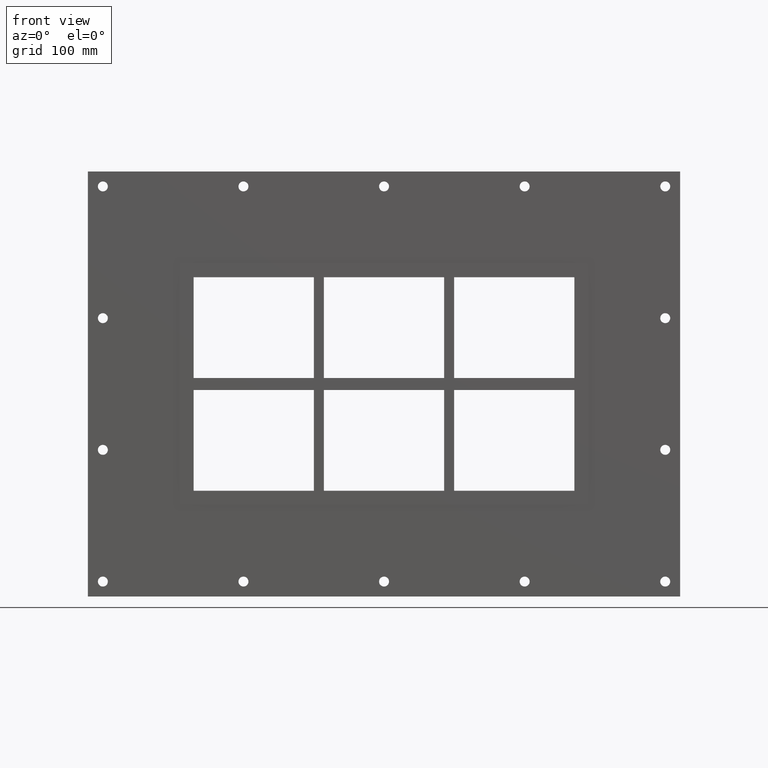
[diagram: clean part render]
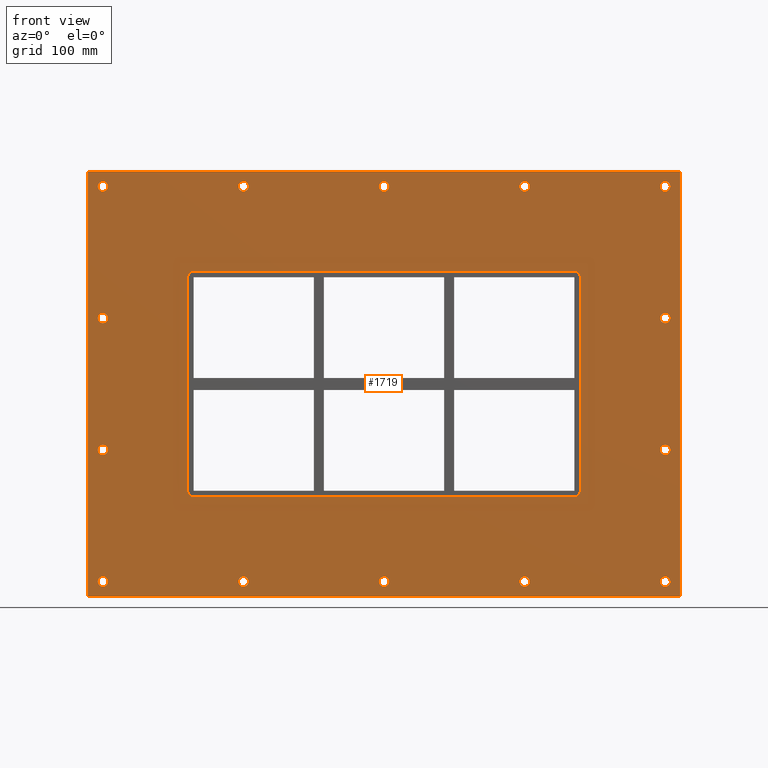
[diagram: same view with one face highlighted and labeled with its STEP entity id]
A machine part, front view. The second image highlights one B-rep face of the part: STEP entity #1719.
In plain terms, the highlighted planar face has unit normal (0, 1, 0).
Its self-contained STEP definition (entity closure, byte-faithful):
#84=CARTESIAN_POINT('',(-276.75000000000017,0.0,-197.99999999999997));
#85=VERTEX_POINT('',#84);
#86=CARTESIAN_POINT('',(-281.75000000000017,0.0,-197.99999999999997));
#87=DIRECTION('',(0.0,1.0,0.0));
#88=DIRECTION('',(1.0,0.0,0.0));
#89=AXIS2_PLACEMENT_3D('',#86,#87,#88);
#90=CIRCLE('',#89,5.0);
#91=EDGE_CURVE('',#85,#85,#90,.T.);
#112=CARTESIAN_POINT('',(286.84999999999991,0.0,-66.000000000000014));
#113=VERTEX_POINT('',#112);
#114=CARTESIAN_POINT('',(281.84999999999991,0.0,-66.000000000000014));
#115=DIRECTION('',(0.0,1.0,0.0));
#116=DIRECTION('',(1.0,0.0,0.0));
#117=AXIS2_PLACEMENT_3D('',#114,#115,#116);
#118=CIRCLE('',#117,5.0);
#119=EDGE_CURVE('',#113,#113,#118,.T.);
#140=CARTESIAN_POINT('',(-276.75000000000017,0.0,-66.000000000000014));
#141=VERTEX_POINT('',#140);
#142=CARTESIAN_POINT('',(-281.75000000000017,0.0,-66.000000000000014));
#143=DIRECTION('',(0.0,1.0,0.0));
#144=DIRECTION('',(1.0,0.0,0.0));
#145=AXIS2_PLACEMENT_3D('',#142,#143,#144);
#146=CIRCLE('',#145,5.0);
#147=EDGE_CURVE('',#141,#141,#146,.T.);
#168=CARTESIAN_POINT('',(286.84999999999991,0.0,66.0));
#169=VERTEX_POINT('',#168);
#170=CARTESIAN_POINT('',(281.84999999999991,0.0,66.0));
#171=DIRECTION('',(0.0,1.0,0.0));
#172=DIRECTION('',(1.0,0.0,0.0));
#173=AXIS2_PLACEMENT_3D('',#170,#171,#172);
#174=CIRCLE('',#173,5.0);
#175=EDGE_CURVE('',#169,#169,#174,.T.);
#196=CARTESIAN_POINT('',(-276.75000000000017,0.0,66.0));
#197=VERTEX_POINT('',#196);
#198=CARTESIAN_POINT('',(-281.75000000000017,0.0,66.0));
#199=DIRECTION('',(0.0,1.0,0.0));
#200=DIRECTION('',(1.0,0.0,0.0));
#201=AXIS2_PLACEMENT_3D('',#198,#199,#200);
#202=CIRCLE('',#201,5.0);
#203=EDGE_CURVE('',#197,#197,#202,.T.);
#224=CARTESIAN_POINT('',(-135.85000000000011,0.0,198.0));
#225=VERTEX_POINT('',#224);
#226=CARTESIAN_POINT('',(-140.85000000000011,0.0,198.0));
#227=DIRECTION('',(0.0,1.0,0.0));
#228=DIRECTION('',(1.0,0.0,0.0));
#229=AXIS2_PLACEMENT_3D('',#226,#227,#228);
#230=CIRCLE('',#229,5.0);
#231=EDGE_CURVE('',#225,#225,#230,.T.);
#252=CARTESIAN_POINT('',(-135.85000000000011,0.0,-198.0));
#253=VERTEX_POINT('',#252);
#254=CARTESIAN_POINT('',(-140.85000000000011,0.0,-198.0));
#255=DIRECTION('',(0.0,1.0,0.0));
#256=DIRECTION('',(1.0,0.0,0.0));
#257=AXIS2_PLACEMENT_3D('',#254,#255,#256);
#258=CIRCLE('',#257,5.0);
#259=EDGE_CURVE('',#253,#253,#258,.T.);
#280=CARTESIAN_POINT('',(5.049999999999884,0.0,198.0));
#281=VERTEX_POINT('',#280);
#282=CARTESIAN_POINT('',(0.049999999999883,0.0,198.0));
#283=DIRECTION('',(0.0,1.0,0.0));
#284=DIRECTION('',(1.0,0.0,0.0));
#285=AXIS2_PLACEMENT_3D('',#282,#283,#284);
#286=CIRCLE('',#285,5.0);
#287=EDGE_CURVE('',#281,#281,#286,.T.);
#308=CARTESIAN_POINT('',(5.049999999999884,0.0,-198.0));
#309=VERTEX_POINT('',#308);
#310=CARTESIAN_POINT('',(0.049999999999883,0.0,-198.0));
#311=DIRECTION('',(0.0,1.0,0.0));
#312=DIRECTION('',(1.0,0.0,0.0));
#313=AXIS2_PLACEMENT_3D('',#310,#311,#312);
#314=CIRCLE('',#313,5.0);
#315=EDGE_CURVE('',#309,#309,#314,.T.);
#336=CARTESIAN_POINT('',(145.9499999999999,0.0,198.0));
#337=VERTEX_POINT('',#336);
#338=CARTESIAN_POINT('',(140.9499999999999,0.0,198.0));
#339=DIRECTION('',(0.0,1.0,0.0));
#340=DIRECTION('',(1.0,0.0,0.0));
#341=AXIS2_PLACEMENT_3D('',#338,#339,#340);
#342=CIRCLE('',#341,5.0);
#343=EDGE_CURVE('',#337,#337,#342,.T.);
#364=CARTESIAN_POINT('',(145.9499999999999,0.0,-198.0));
#365=VERTEX_POINT('',#364);
#366=CARTESIAN_POINT('',(140.9499999999999,0.0,-198.0));
#367=DIRECTION('',(0.0,1.0,0.0));
#368=DIRECTION('',(1.0,0.0,0.0));
#369=AXIS2_PLACEMENT_3D('',#366,#367,#368);
#370=CIRCLE('',#369,5.0);
#371=EDGE_CURVE('',#365,#365,#370,.T.);
#392=CARTESIAN_POINT('',(286.84999999999991,0.0,-198.0));
#393=VERTEX_POINT('',#392);
#394=CARTESIAN_POINT('',(281.84999999999991,0.0,-198.0));
#395=DIRECTION('',(0.0,1.0,0.0));
#396=DIRECTION('',(1.0,0.0,0.0));
#397=AXIS2_PLACEMENT_3D('',#394,#395,#396);
#398=CIRCLE('',#397,5.0);
#399=EDGE_CURVE('',#393,#393,#398,.T.);
#420=CARTESIAN_POINT('',(-276.75000000000017,0.0,198.0));
#421=VERTEX_POINT('',#420);
#422=CARTESIAN_POINT('',(-281.75000000000017,0.0,198.0));
#423=DIRECTION('',(0.0,1.0,0.0));
#424=DIRECTION('',(1.0,0.0,0.0));
#425=AXIS2_PLACEMENT_3D('',#422,#423,#424);
#426=CIRCLE('',#425,5.0);
#427=EDGE_CURVE('',#421,#421,#426,.T.);
#448=CARTESIAN_POINT('',(286.84999999999991,0.0,198.0));
#449=VERTEX_POINT('',#448);
#450=CARTESIAN_POINT('',(281.84999999999991,0.0,198.0));
#451=DIRECTION('',(0.0,1.0,0.0));
#452=DIRECTION('',(1.0,0.0,0.0));
#453=AXIS2_PLACEMENT_3D('',#450,#451,#452);
#454=CIRCLE('',#453,5.0);
#455=EDGE_CURVE('',#449,#449,#454,.T.);
#1568=CARTESIAN_POINT('',(0.0,0.0,-2.414939E-014));
#1569=DIRECTION('',(0.0,1.0,0.0));
#1570=DIRECTION('',(0.0,0.0,1.0));
#1571=AXIS2_PLACEMENT_3D('',#1568,#1569,#1570);
#1572=PLANE('',#1571);
#1573=CARTESIAN_POINT('',(-296.75000000000006,0.0,212.99999999999997));
#1574=VERTEX_POINT('',#1573);
#1575=CARTESIAN_POINT('',(296.75000000000006,0.0,212.99999999999997));
#1576=VERTEX_POINT('',#1575);
#1577=CARTESIAN_POINT('',(-296.75000000000006,0.0,212.99999999999997));
#1578=DIRECTION('',(1.0,0.0,0.0));
#1579=VECTOR('',#1578,593.50000000000011);
#1580=LINE('',#1577,#1579);
#1581=EDGE_CURVE('',#1574,#1576,#1580,.T.);
#1582=ORIENTED_EDGE('',*,*,#1581,.F.);
#1583=CARTESIAN_POINT('',(-296.75000000000006,0.0,-213.0));
#1584=VERTEX_POINT('',#1583);
#1585=CARTESIAN_POINT('',(-296.75000000000006,0.0,-213.0));
#1586=DIRECTION('',(0.0,0.0,1.0));
#1587=VECTOR('',#1586,425.99999999999994);
#1588=LINE('',#1585,#1587);
#1589=EDGE_CURVE('',#1584,#1574,#1588,.T.);
#1590=ORIENTED_EDGE('',*,*,#1589,.F.);
#1591=CARTESIAN_POINT('',(296.75000000000006,0.0,-213.0));
#1592=VERTEX_POINT('',#1591);
#1593=CARTESIAN_POINT('',(296.75000000000006,0.0,-213.0));
#1594=DIRECTION('',(-1.0,0.0,0.0));
#1595=VECTOR('',#1594,593.50000000000011);
#1596=LINE('',#1593,#1595);
#1597=EDGE_CURVE('',#1592,#1584,#1596,.T.);
#1598=ORIENTED_EDGE('',*,*,#1597,.F.);
#1599=CARTESIAN_POINT('',(296.75000000000006,0.0,212.99999999999997));
#1600=DIRECTION('',(0.0,0.0,-1.0));
#1601=VECTOR('',#1600,425.99999999999994);
#1602=LINE('',#1599,#1601);
#1603=EDGE_CURVE('',#1576,#1592,#1602,.T.);
#1604=ORIENTED_EDGE('',*,*,#1603,.F.);
#1605=EDGE_LOOP('',(#1582,#1590,#1598,#1604));
#1606=FACE_OUTER_BOUND('',#1605,.T.);
#1607=ORIENTED_EDGE('',*,*,#91,.T.);
#1608=EDGE_LOOP('',(#1607));
#1609=FACE_BOUND('',#1608,.T.);
#1610=ORIENTED_EDGE('',*,*,#119,.T.);
#1611=EDGE_LOOP('',(#1610));
#1612=FACE_BOUND('',#1611,.T.);
#1613=ORIENTED_EDGE('',*,*,#147,.T.);
#1614=EDGE_LOOP('',(#1613));
#1615=FACE_BOUND('',#1614,.T.);
#1616=ORIENTED_EDGE('',*,*,#175,.T.);
#1617=EDGE_LOOP('',(#1616));
#1618=FACE_BOUND('',#1617,.T.);
#1619=ORIENTED_EDGE('',*,*,#203,.T.);
#1620=EDGE_LOOP('',(#1619));
#1621=FACE_BOUND('',#1620,.T.);
#1622=ORIENTED_EDGE('',*,*,#231,.T.);
#1623=EDGE_LOOP('',(#1622));
#1624=FACE_BOUND('',#1623,.T.);
#1625=ORIENTED_EDGE('',*,*,#259,.T.);
#1626=EDGE_LOOP('',(#1625));
#1627=FACE_BOUND('',#1626,.T.);
#1628=ORIENTED_EDGE('',*,*,#287,.T.);
#1629=EDGE_LOOP('',(#1628));
#1630=FACE_BOUND('',#1629,.T.);
#1631=ORIENTED_EDGE('',*,*,#315,.T.);
#1632=EDGE_LOOP('',(#1631));
#1633=FACE_BOUND('',#1632,.T.);
#1634=ORIENTED_EDGE('',*,*,#343,.T.);
#1635=EDGE_LOOP('',(#1634));
#1636=FACE_BOUND('',#1635,.T.);
#1637=ORIENTED_EDGE('',*,*,#371,.T.);
#1638=EDGE_LOOP('',(#1637));
#1639=FACE_BOUND('',#1638,.T.);
#1640=ORIENTED_EDGE('',*,*,#399,.T.);
#1641=EDGE_LOOP('',(#1640));
#1642=FACE_BOUND('',#1641,.T.);
#1643=ORIENTED_EDGE('',*,*,#427,.T.);
#1644=EDGE_LOOP('',(#1643));
#1645=FACE_BOUND('',#1644,.T.);
#1646=ORIENTED_EDGE('',*,*,#455,.T.);
#1647=EDGE_LOOP('',(#1646));
#1648=FACE_BOUND('',#1647,.T.);
#1649=CARTESIAN_POINT('',(-196.75000000000006,0.0,-107.0));
#1650=VERTEX_POINT('',#1649);
#1651=CARTESIAN_POINT('',(-190.75000000000003,0.0,-113.0));
#1652=VERTEX_POINT('',#1651);
#1653=CARTESIAN_POINT('',(-190.75000000000003,0.0,-107.0));
#1654=DIRECTION('',(0.0,-1.0,0.0));
#1655=DIRECTION('',(-0.707106781186548,0.0,-0.707106781186548));
#1656=AXIS2_PLACEMENT_3D('',#1653,#1654,#1655);
#1657=CIRCLE('',#1656,6.000000000000002);
#1658=EDGE_CURVE('',#1650,#1652,#1657,.T.);
#1659=ORIENTED_EDGE('',*,*,#1658,.F.);
#1660=CARTESIAN_POINT('',(-196.75000000000006,0.0,107.0));
#1661=VERTEX_POINT('',#1660);
#1662=CARTESIAN_POINT('',(-196.75000000000006,0.0,106.99999999999999));
#1663=DIRECTION('',(0.0,0.0,-1.0));
#1664=VECTOR('',#1663,214.0);
#1665=LINE('',#1662,#1664);
#1666=EDGE_CURVE('',#1661,#1650,#1665,.T.);
#1667=ORIENTED_EDGE('',*,*,#1666,.F.);
#1668=CARTESIAN_POINT('',(-190.75000000000003,0.0,113.0));
#1669=VERTEX_POINT('',#1668);
#1670=CARTESIAN_POINT('',(-190.75000000000003,0.0,107.0));
#1671=DIRECTION('',(0.0,-1.0,0.0));
#1672=DIRECTION('',(-0.707106781186548,0.0,0.707106781186548));
#1673=AXIS2_PLACEMENT_3D('',#1670,#1671,#1672);
#1674=CIRCLE('',#1673,6.000000000000002);
#1675=EDGE_CURVE('',#1669,#1661,#1674,.T.);
#1676=ORIENTED_EDGE('',*,*,#1675,.F.);
#1677=CARTESIAN_POINT('',(190.75000000000003,0.0,113.0));
#1678=VERTEX_POINT('',#1677);
#1679=CARTESIAN_POINT('',(190.75000000000003,0.0,113.0));
#1680=DIRECTION('',(-1.0,0.0,0.0));
#1681=VECTOR('',#1680,381.50000000000006);
#1682=LINE('',#1679,#1681);
#1683=EDGE_CURVE('',#1678,#1669,#1682,.T.);
#1684=ORIENTED_EDGE('',*,*,#1683,.F.);
#1685=CARTESIAN_POINT('',(196.75000000000006,0.0,107.00000000000001));
#1686=VERTEX_POINT('',#1685);
#1687=CARTESIAN_POINT('',(190.75000000000003,0.0,107.00000000000001));
#1688=DIRECTION('',(0.0,-1.0,0.0));
#1689=DIRECTION('',(0.70710678118655,0.0,0.707106781186545));
#1690=AXIS2_PLACEMENT_3D('',#1687,#1688,#1689);
#1691=CIRCLE('',#1690,6.000000000000001);
#1692=EDGE_CURVE('',#1686,#1678,#1691,.T.);
#1693=ORIENTED_EDGE('',*,*,#1692,.F.);
#1694=CARTESIAN_POINT('',(196.75000000000006,0.0,-107.0));
#1695=VERTEX_POINT('',#1694);
#1696=CARTESIAN_POINT('',(196.75000000000006,0.0,-106.99999999999997));
#1697=DIRECTION('',(0.0,0.0,1.0));
#1698=VECTOR('',#1697,213.99999999999997);
#1699=LINE('',#1696,#1698);
#1700=EDGE_CURVE('',#1695,#1686,#1699,.T.);
#1701=ORIENTED_EDGE('',*,*,#1700,.F.);
#1702=CARTESIAN_POINT('',(190.75000000000003,0.0,-113.0));
#1703=VERTEX_POINT('',#1702);
#1704=CARTESIAN_POINT('',(190.75000000000003,0.0,-107.0));
#1705=DIRECTION('',(0.0,-1.0,0.0));
#1706=DIRECTION('',(0.707106781186548,0.0,-0.707106781186548));
#1707=AXIS2_PLACEMENT_3D('',#1704,#1705,#1706);
#1708=CIRCLE('',#1707,6.000000000000002);
#1709=EDGE_CURVE('',#1703,#1695,#1708,.T.);
#1710=ORIENTED_EDGE('',*,*,#1709,.F.);
#1711=CARTESIAN_POINT('',(-190.75000000000003,0.0,-113.0));
#1712=DIRECTION('',(1.0,0.0,0.0));
#1713=VECTOR('',#1712,381.50000000000006);
#1714=LINE('',#1711,#1713);
#1715=EDGE_CURVE('',#1652,#1703,#1714,.T.);
#1716=ORIENTED_EDGE('',*,*,#1715,.F.);
#1717=EDGE_LOOP('',(#1659,#1667,#1676,#1684,#1693,#1701,#1710,#1716));
#1718=FACE_BOUND('',#1717,.T.);
#1719=ADVANCED_FACE('',(#1606,#1609,#1612,#1615,#1618,#1621,#1624,#1627,#1630,#1633,#1636,#1639,#1642,#1645,#1648,#1718),#1572,.F.);